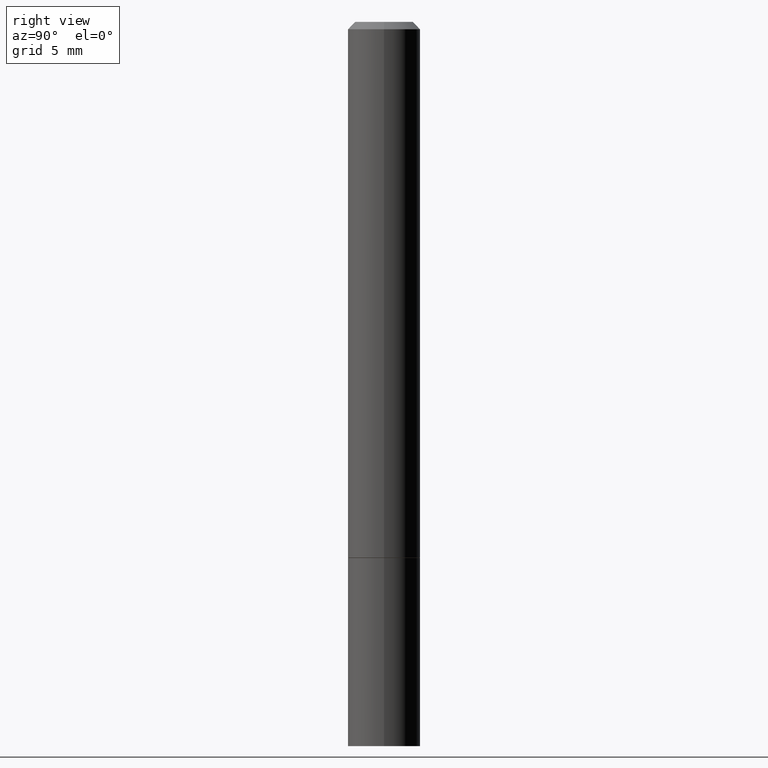
[diagram: clean part render]
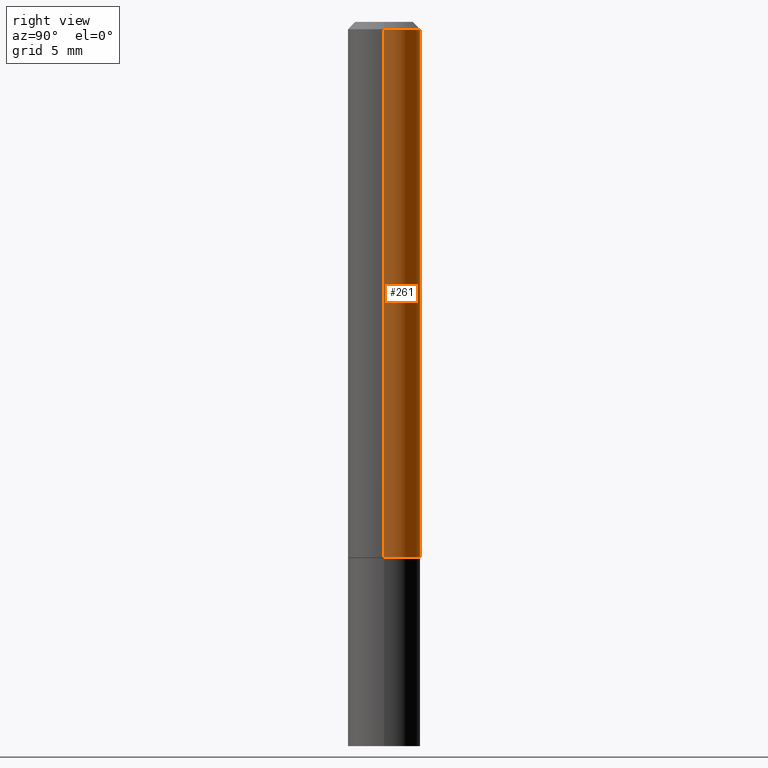
[diagram: same view with one face highlighted and labeled with its STEP entity id]
A machine part, right view. The second image highlights one B-rep face of the part: STEP entity #261.
In plain terms, the highlighted cylindrical surface (edge-blend (fillet) strip) has radius 2.5006 mm, axis along (-0, 0, 1).
Its self-contained STEP definition (entity closure, byte-faithful):
#2 = CARTESIAN_POINT ( 'NONE',  ( 0.000000000000000000, 0.000000000000000000, 0.000000000000000000 ) ) ;
#3 = CARTESIAN_POINT ( 'NONE',  ( -0.09845000000000000973, -1.876660182509593708E-15, -1.455699999999999994 ) ) ;
#4 = LINE ( 'NONE', #189, #74 ) ;
#12 = DIRECTION ( 'NONE',  ( -2.445468806185136877E-29, 3.491481338843145188E-15, 1.000000000000000000 ) ) ;
#22 = DIRECTION ( 'NONE',  ( -2.445468806185136597E-29, 3.491481338843145583E-15, 1.000000000000000000 ) ) ;
#27 = VERTEX_POINT ( 'NONE', #251 ) ;
#31 = ORIENTED_EDGE ( 'NONE', *, *, #67, .T. ) ;
#37 = DIRECTION ( 'NONE',  ( -2.445468806185136877E-29, 3.491481338843145188E-15, 1.000000000000000000 ) ) ;
#48 = CARTESIAN_POINT ( 'NONE',  ( 3.559868941163703312E-29, -5.082549384953967438E-15, -1.455699999999999994 ) ) ;
#56 = DIRECTION ( 'NONE',  ( -2.445468806185136597E-29, 3.491481338843145583E-15, 1.000000000000000000 ) ) ;
#58 = CYLINDRICAL_SURFACE ( 'NONE', #162, 0.09844999999999991258 ) ;
#67 = EDGE_CURVE ( 'NONE', #356, #143, #152, .T. ) ;
#70 = CIRCLE ( 'NONE', #366, 0.09844999999999980156 ) ;
#74 = VECTOR ( 'NONE', #12, 39.37007874015748143 ) ;
#96 = CARTESIAN_POINT ( 'NONE',  ( 0.09845000000000000973, -5.770022060572179999E-15, -1.455699999999999994 ) ) ;
#108 = EDGE_CURVE ( 'NONE', #143, #27, #4, .T. ) ;
#143 = VERTEX_POINT ( 'NONE', #3 ) ;
#150 = CARTESIAN_POINT ( 'NONE',  ( 4.890937612370276662E-31, -6.982962677686296539E-17, -0.02000000000000001776 ) ) ;
#151 = DIRECTION ( 'NONE',  ( 1.000000000000000000, -6.982962677686266711E-15, 0.000000000000000000 ) ) ;
#152 = CIRCLE ( 'NONE', #350, 0.09845000000000000973 ) ;
#162 = AXIS2_PLACEMENT_3D ( 'NONE', #2, #179, #243 ) ;
#178 = VERTEX_POINT ( 'NONE', #354 ) ;
#179 = DIRECTION ( 'NONE',  ( -2.445468806185136597E-29, 3.491481338843145583E-15, 1.000000000000000000 ) ) ;
#183 = FACE_OUTER_BOUND ( 'NONE', #228, .T. ) ;
#189 = CARTESIAN_POINT ( 'NONE',  ( -0.09844999999999991258, 6.995293233558180118E-16, -4.842691596355949838E-30 ) ) ;
#228 = EDGE_LOOP ( 'NONE', ( #31, #290, #241, #248 ) ) ;
#237 = LINE ( 'NONE', #259, #250 ) ;
#240 = DIRECTION ( 'NONE',  ( 1.000000000000000000, -6.982962677686265133E-15, 0.000000000000000000 ) ) ;
#241 = ORIENTED_EDGE ( 'NONE', *, *, #337, .F. ) ;
#243 = DIRECTION ( 'NONE',  ( 1.000000000000000000, -6.982962677686266711E-15, 4.876176775795935793E-29 ) ) ;
#248 = ORIENTED_EDGE ( 'NONE', *, *, #263, .F. ) ;
#250 = VECTOR ( 'NONE', #37, 39.37007874015748143 ) ;
#251 = CARTESIAN_POINT ( 'NONE',  ( -0.09844999999999980156, 6.176430488413486702E-16, -0.02000000000000001776 ) ) ;
#259 = CARTESIAN_POINT ( 'NONE',  ( 0.09844999999999991258, -6.874726756182123629E-16, 4.800596035771094310E-30 ) ) ;
#261 = ADVANCED_FACE ( 'NONE', ( #183 ), #58, .T. ) ;
#263 = EDGE_CURVE ( 'NONE', #356, #178, #237, .T. ) ;
#290 = ORIENTED_EDGE ( 'NONE', *, *, #108, .T. ) ;
#337 = EDGE_CURVE ( 'NONE', #178, #27, #70, .T. ) ;
#350 = AXIS2_PLACEMENT_3D ( 'NONE', #48, #22, #240 ) ;
#354 = CARTESIAN_POINT ( 'NONE',  ( 0.09844999999999980156, -7.452456546574689274E-16, -0.02000000000000001776 ) ) ;
#356 = VERTEX_POINT ( 'NONE', #96 ) ;
#366 = AXIS2_PLACEMENT_3D ( 'NONE', #150, #56, #151 ) ;